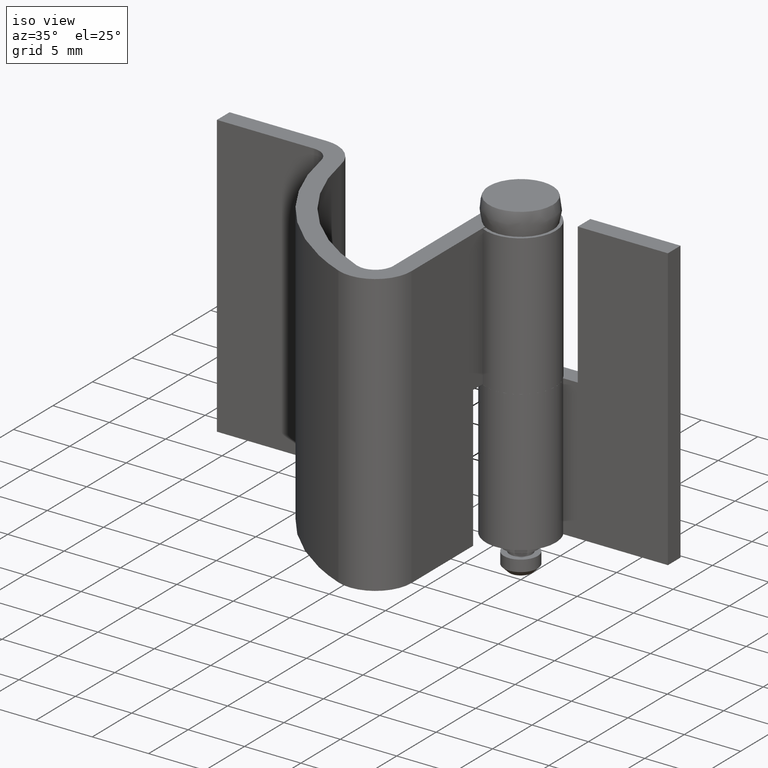
[diagram: clean part render]
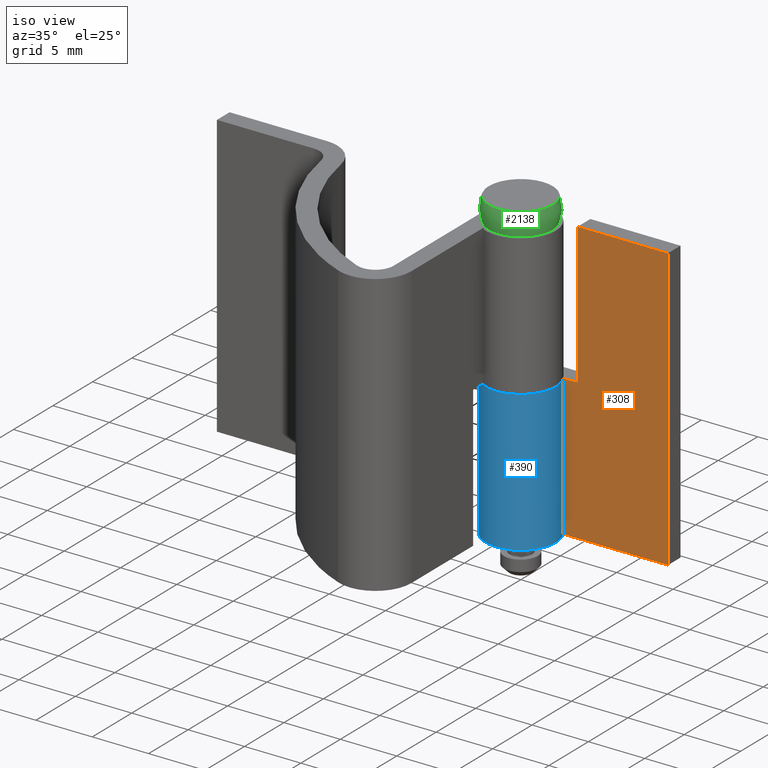
[diagram: same view with three faces highlighted in distinct colors, each labeled with its STEP entity id]
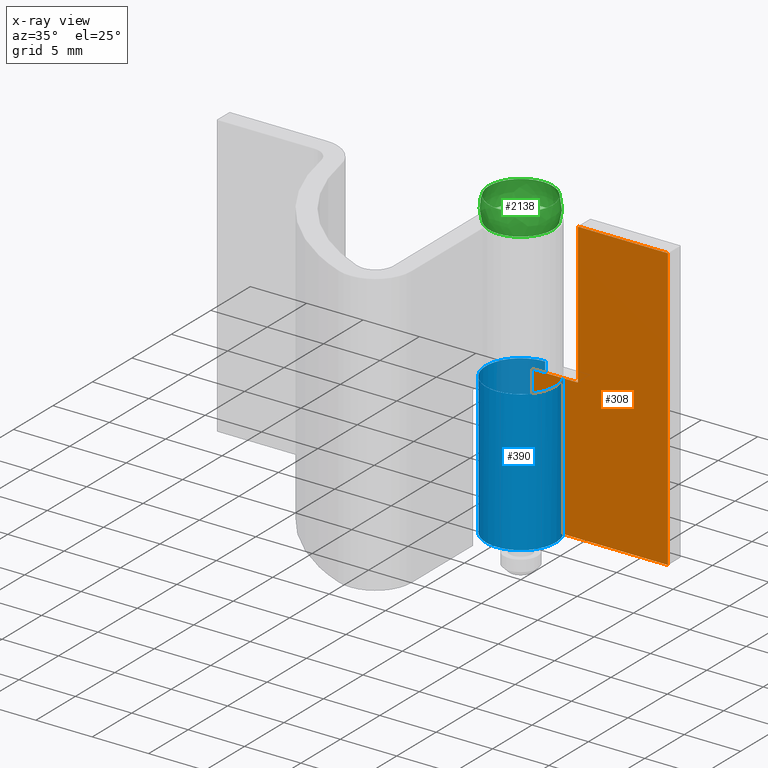
[diagram: x-ray of the same camera — body ghosted, the three highlighted faces saturated]
A machine part, iso view with three faces highlighted in distinct colors.
The next image is the same camera in x-ray (body ghosted, the three faces saturated) — at least one of them is partly hidden behind the body in this view.
Their STEP definitions:

[orange] entity #308 — the highlighted face is a freeform B-spline surface patch.
#79=CARTESIAN_POINT('',(1.240420E-015,1.500000000000000,15.500000000000000));
#80=VERTEX_POINT('',#79);
#100=CARTESIAN_POINT('',(4.0,1.500000000000085,15.500000000000000));
#101=VERTEX_POINT('',#100);
#102=CARTESIAN_POINT('',(1.240420E-015,1.500000000000000,15.500000000000000));
#103=CARTESIAN_POINT('',(4.0,1.500000000000085,15.500000000000000));
#104=QUASI_UNIFORM_CURVE('',1,(#102,#103),.UNSPECIFIED.,.F.,.U.);
#105=EDGE_CURVE('',#80,#101,#104,.T.);
#142=CARTESIAN_POINT('',(4.0,1.500000000000085,28.000008000000001));
#143=VERTEX_POINT('',#142);
#157=CARTESIAN_POINT('',(4.0,1.500000000000085,15.500000000000000));
#158=CARTESIAN_POINT('',(4.0,1.500000000000085,28.000008000000001));
#159=QUASI_UNIFORM_CURVE('',1,(#157,#158),.UNSPECIFIED.,.F.,.U.);
#160=EDGE_CURVE('',#101,#143,#159,.T.);
#179=CARTESIAN_POINT('',(12.0,1.500000000000000,3.0));
#180=VERTEX_POINT('',#179);
#186=CARTESIAN_POINT('',(1.240422E-015,1.500000000000000,3.0));
#187=VERTEX_POINT('',#186);
#188=CARTESIAN_POINT('',(1.240422E-015,1.500000000000000,3.0));
#189=CARTESIAN_POINT('',(12.0,1.500000000000000,3.0));
#190=QUASI_UNIFORM_CURVE('',1,(#188,#189),.UNSPECIFIED.,.F.,.U.);
#191=EDGE_CURVE('',#187,#180,#190,.T.);
#256=CARTESIAN_POINT('',(12.0,1.500000000000000,28.000008000000001));
#257=VERTEX_POINT('',#256);
#263=CARTESIAN_POINT('',(12.0,1.500000000000000,28.000008000000001));
#264=CARTESIAN_POINT('',(12.0,1.500000000000000,3.0));
#265=QUASI_UNIFORM_CURVE('',1,(#263,#264),.UNSPECIFIED.,.F.,.U.);
#266=EDGE_CURVE('',#257,#180,#265,.T.);
#277=CARTESIAN_POINT('',(4.0,1.500000000000085,28.000008000000001));
#278=CARTESIAN_POINT('',(12.0,1.500000000000000,28.000008000000001));
#279=QUASI_UNIFORM_CURVE('',1,(#277,#278),.UNSPECIFIED.,.F.,.U.);
#280=EDGE_CURVE('',#143,#257,#279,.T.);
#291=CARTESIAN_POINT('',(-0.599399976741670,1.500000000000000,29.248758116462952));
#292=CARTESIAN_POINT('',(-0.599399976741670,1.500000000000000,1.751248989467098));
#293=CARTESIAN_POINT('',(12.599400298606760,1.500000000000000,29.248758116462952));
#294=CARTESIAN_POINT('',(12.599400298606760,1.500000000000000,1.751248989467098));
#295=B_SPLINE_SURFACE_WITH_KNOTS('',1,1,((#291,#293),(#292,#294)),.UNSPECIFIED.,.F.,.F.,.U.,(2,2),(2,2),(0.0,27.497509126995851),(0.0,13.198800275348431),.UNSPECIFIED.);
#296=ORIENTED_EDGE('',*,*,#105,.F.);
#297=CARTESIAN_POINT('',(1.240420E-015,1.500000000000000,15.500000000000000));
#298=CARTESIAN_POINT('',(1.240422E-015,1.500000000000000,3.0));
#299=QUASI_UNIFORM_CURVE('',1,(#297,#298),.UNSPECIFIED.,.F.,.U.);
#300=EDGE_CURVE('',#80,#187,#299,.T.);
#301=ORIENTED_EDGE('',*,*,#300,.T.);
#302=ORIENTED_EDGE('',*,*,#191,.T.);
#303=ORIENTED_EDGE('',*,*,#266,.F.);
#304=ORIENTED_EDGE('',*,*,#280,.F.);
#305=ORIENTED_EDGE('',*,*,#160,.F.);
#306=EDGE_LOOP('',(#296,#301,#302,#303,#304,#305));
#307=FACE_OUTER_BOUND('',#306,.T.);
#308=ADVANCED_FACE('',(#307),#295,.T.);

[blue] entity #390 — the highlighted face is a freeform B-spline surface patch.
#49=CARTESIAN_POINT('',(2.739981751764050,1.450000000000000,15.500000000000000));
#50=VERTEX_POINT('',#49);
#51=CARTESIAN_POINT('',(-0.003521362805220,3.099998000000000,15.500000000000000));
#52=VERTEX_POINT('',#51);
#53=CARTESIAN_POINT('',(2.739981751764050,1.450000000000002,15.500000000000000));
#54=CARTESIAN_POINT('',(3.841702627498679,-0.631858686241644,15.500000000000005));
#55=CARTESIAN_POINT('',(2.131234265315453,-2.251186466365081,15.500000000000000));
#56=CARTESIAN_POINT('',(0.420765903132227,-3.870514246488519,15.500000000000005));
#57=CARTESIAN_POINT('',(-1.597709990920185,-2.656562211752968,15.500000000000000));
#58=CARTESIAN_POINT('',(-3.616185884972596,-1.442610177017418,15.500000000000005));
#59=CARTESIAN_POINT('',(-2.987554489866698,0.827356132555585,15.500000000000000));
#60=CARTESIAN_POINT('',(-2.358923094760799,3.097322442128588,15.500000000000005));
#61=CARTESIAN_POINT('',(-0.003521362805220,3.099997999999999,15.500000000000000));
#69=(BOUNDED_CURVE()B_SPLINE_CURVE(2,(#53,#54,#55,#56,#57,#58,#59,#60,#61),.UNSPECIFIED.,.F.,.U.)B_SPLINE_CURVE_WITH_KNOTS((3,2,2,2,3),(0.0,0.250000000000000,0.500000000000000,0.750000000000000,1.0),.UNSPECIFIED.)CURVE()GEOMETRIC_REPRESENTATION_ITEM()RATIONAL_B_SPLINE_CURVE((1.0,0.796236027586614,1.0,0.796236027586614,1.0,0.796236027586614,1.0,0.796236027586614,1.0))REPRESENTATION_ITEM(''));
#70=EDGE_CURVE('',#50,#52,#69,.T.);
#172=CARTESIAN_POINT('',(-0.003521362805220,3.099998000000000,3.0));
#173=VERTEX_POINT('',#172);
#214=CARTESIAN_POINT('',(2.739981751764050,1.450000000000000,3.0));
#215=VERTEX_POINT('',#214);
#221=CARTESIAN_POINT('',(-0.003521362805220,3.099997999999999,3.0));
#222=CARTESIAN_POINT('',(-2.358923094760800,3.097322442128588,3.0));
#223=CARTESIAN_POINT('',(-2.987554489866698,0.827356132555584,3.0));
#224=CARTESIAN_POINT('',(-3.616185884972595,-1.442610177017417,3.0));
#225=CARTESIAN_POINT('',(-1.597709990920186,-2.656562211752968,3.0));
#226=CARTESIAN_POINT('',(0.420765903132224,-3.870514246488519,3.0));
#227=CARTESIAN_POINT('',(2.131234265315451,-2.251186466365083,3.0));
#228=CARTESIAN_POINT('',(3.841702627498679,-0.631858686241647,3.0));
#229=CARTESIAN_POINT('',(2.739981751764052,1.450000000000000,3.0));
#237=(BOUNDED_CURVE()B_SPLINE_CURVE(2,(#221,#222,#223,#224,#225,#226,#227,#228,#229),.UNSPECIFIED.,.F.,.U.)B_SPLINE_CURVE_WITH_KNOTS((3,2,2,2,3),(0.0,0.250000000000000,0.500000000000000,0.750000000000000,1.0),.UNSPECIFIED.)CURVE()GEOMETRIC_REPRESENTATION_ITEM()RATIONAL_B_SPLINE_CURVE((1.0,0.796236027586614,1.0,0.796236027586614,1.0,0.796236027586614,1.0,0.796236027586614,1.0))REPRESENTATION_ITEM(''));
#238=EDGE_CURVE('',#173,#215,#237,.T.);
#347=CARTESIAN_POINT('',(2.739981751764050,1.450000000000000,15.500000000000000));
#348=CARTESIAN_POINT('',(2.739981751764050,1.450000000000000,3.0));
#349=QUASI_UNIFORM_CURVE('',1,(#347,#348),.UNSPECIFIED.,.F.,.U.);
#350=EDGE_CURVE('',#50,#215,#349,.T.);
#358=CARTESIAN_POINT('',(0.131702002345663,3.097201088495568,15.812500000000000));
#359=CARTESIAN_POINT('',(0.131702002345663,3.097201088495568,2.679687500000000));
#360=CARTESIAN_POINT('',(-3.625503359181679,3.256968392974133,15.812500000000007));
#361=CARTESIAN_POINT('',(-3.625503359181679,3.256968392974133,2.679687500000000));
#362=CARTESIAN_POINT('',(-3.065426707827600,-0.461691562557988,15.812500000000000));
#363=CARTESIAN_POINT('',(-3.065426707827600,-0.461691562557988,2.679687500000000));
#364=CARTESIAN_POINT('',(-2.505350056473519,-4.180351518090109,15.812500000000007));
#365=CARTESIAN_POINT('',(-2.505350056473519,-4.180351518090109,2.679687500000000));
#366=CARTESIAN_POINT('',(1.038119978696361,-2.921011282044535,15.812500000000000));
#367=CARTESIAN_POINT('',(1.038119978696361,-2.921011282044535,2.679687500000000));
#368=CARTESIAN_POINT('',(4.581590013866240,-1.661671045998961,15.812500000000007));
#369=CARTESIAN_POINT('',(4.581590013866240,-1.661671045998961,2.679687500000000));
#370=CARTESIAN_POINT('',(2.669261447396855,1.576402018978927,15.812500000000000));
#371=CARTESIAN_POINT('',(2.669261447396855,1.576402018978927,2.679687500000000));
#379=(BOUNDED_SURFACE()B_SPLINE_SURFACE(1,2,((#358,#360,#362,#364,#366,#368,#370),(#359,#361,#363,#365,#367,#369,#371)),.UNSPECIFIED.,.F.,.F.,.U.)B_SPLINE_SURFACE_WITH_KNOTS((2,2),(3,2,2,3),(0.0,13.132812500000000),(0.0,5.848219672763137,11.696439345526271,17.544659018289408),.UNSPECIFIED.)GEOMETRIC_REPRESENTATION_ITEM()RATIONAL_B_SPLINE_SURFACE(((1.0,0.636078220277764,1.0,0.636078220277764,1.0,0.636078220277764,1.0),(1.0,0.636078220277764,1.0,0.636078220277764,1.0,0.636078220277764,1.0)))REPRESENTATION_ITEM('')SURFACE());
#380=CARTESIAN_POINT('',(-0.003521362805220,3.099998000000000,15.500000000000000));
#381=CARTESIAN_POINT('',(-0.003521362805220,3.099998000000000,3.0));
#382=QUASI_UNIFORM_CURVE('',1,(#380,#381),.UNSPECIFIED.,.F.,.U.);
#383=EDGE_CURVE('',#52,#173,#382,.T.);
#384=ORIENTED_EDGE('',*,*,#383,.T.);
#385=ORIENTED_EDGE('',*,*,#238,.T.);
#386=ORIENTED_EDGE('',*,*,#350,.F.);
#387=ORIENTED_EDGE('',*,*,#70,.T.);
#388=EDGE_LOOP('',(#384,#385,#386,#387));
#389=FACE_OUTER_BOUND('',#388,.T.);
#390=ADVANCED_FACE('',(#389),#379,.T.);

[green] entity #2138 — the highlighted face is a freeform B-spline surface patch.
#1953=CARTESIAN_POINT('',(2.828430000000000,0.0,30.000008000000001));
#1954=VERTEX_POINT('',#1953);
#1955=CARTESIAN_POINT('',(-2.828430000000000,0.0,30.000008000000001));
#1956=VERTEX_POINT('',#1955);
#1957=CARTESIAN_POINT('',(2.828430000000000,0.0,30.000008000000001));
#1958=CARTESIAN_POINT('',(2.828429999999999,-2.828429999999999,30.000008000000008));
#1959=CARTESIAN_POINT('',(0.0,-2.828430000000000,30.000008000000001));
#1960=CARTESIAN_POINT('',(-2.828429999999999,-2.828429999999999,30.000008000000008));
#1961=CARTESIAN_POINT('',(-2.828430000000000,0.0,30.000008000000001));
#1969=(BOUNDED_CURVE()B_SPLINE_CURVE(2,(#1957,#1958,#1959,#1960,#1961),.UNSPECIFIED.,.F.,.U.)B_SPLINE_CURVE_WITH_KNOTS((3,2,3),(0.500000000000000,0.750000000000000,1.0),.UNSPECIFIED.)CURVE()GEOMETRIC_REPRESENTATION_ITEM()RATIONAL_B_SPLINE_CURVE((1.0,0.707106781186547,1.0,0.707106781186547,1.0))REPRESENTATION_ITEM(''));
#1970=EDGE_CURVE('',#1954,#1956,#1969,.T.);
#1972=CARTESIAN_POINT('',(-2.828430000000000,0.0,30.000008000000001));
#1973=CARTESIAN_POINT('',(-2.828429999999999,2.828429999999999,30.000008000000008));
#1974=CARTESIAN_POINT('',(0.0,2.828430000000000,30.000008000000001));
#1975=CARTESIAN_POINT('',(2.828429999999999,2.828429999999999,30.000008000000008));
#1976=CARTESIAN_POINT('',(2.828430000000000,0.0,30.000008000000001));
#1984=(BOUNDED_CURVE()B_SPLINE_CURVE(2,(#1972,#1973,#1974,#1975,#1976),.UNSPECIFIED.,.F.,.U.)B_SPLINE_CURVE_WITH_KNOTS((3,2,3),(0.0,0.250000000000000,0.500000000000000),.UNSPECIFIED.)CURVE()GEOMETRIC_REPRESENTATION_ITEM()RATIONAL_B_SPLINE_CURVE((1.0,0.707106781186547,1.0,0.707106781186547,1.0))REPRESENTATION_ITEM(''));
#1985=EDGE_CURVE('',#1956,#1954,#1984,.T.);
#2043=CARTESIAN_POINT('',(-2.828427124746190,0.0,28.000008000000001));
#2044=VERTEX_POINT('',#2043);
#2045=CARTESIAN_POINT('',(2.828427124746190,0.0,28.000008000000001));
#2046=VERTEX_POINT('',#2045);
#2047=CARTESIAN_POINT('',(-2.828427124746190,0.0,28.000008000000001));
#2048=CARTESIAN_POINT('',(-2.828427124746189,2.828427124746189,28.000008000000001));
#2049=CARTESIAN_POINT('',(0.0,2.828427124746190,28.000008000000001));
#2050=CARTESIAN_POINT('',(2.828427124746189,2.828427124746189,28.000008000000001));
#2051=CARTESIAN_POINT('',(2.828427124746190,0.0,28.000008000000001));
#2059=(BOUNDED_CURVE()B_SPLINE_CURVE(2,(#2047,#2048,#2049,#2050,#2051),.UNSPECIFIED.,.F.,.U.)B_SPLINE_CURVE_WITH_KNOTS((3,2,3),(0.0,0.250000000000000,0.500000000000000),.UNSPECIFIED.)CURVE()GEOMETRIC_REPRESENTATION_ITEM()RATIONAL_B_SPLINE_CURVE((1.0,0.707106781186547,1.0,0.707106781186547,1.0))REPRESENTATION_ITEM(''));
#2060=EDGE_CURVE('',#2044,#2046,#2059,.T.);
#2062=CARTESIAN_POINT('',(2.828427124746190,0.0,28.000008000000001));
#2063=CARTESIAN_POINT('',(2.828427124746189,-2.828427124746189,28.000008000000001));
#2064=CARTESIAN_POINT('',(0.0,-2.828427124746190,28.000008000000001));
#2065=CARTESIAN_POINT('',(-2.828427124746189,-2.828427124746189,28.000008000000001));
#2066=CARTESIAN_POINT('',(-2.828427124746190,0.0,28.000008000000001));
#2074=(BOUNDED_CURVE()B_SPLINE_CURVE(2,(#2062,#2063,#2064,#2065,#2066),.UNSPECIFIED.,.F.,.U.)B_SPLINE_CURVE_WITH_KNOTS((3,2,3),(0.500000000000000,0.750000000000000,1.0),.UNSPECIFIED.)CURVE()GEOMETRIC_REPRESENTATION_ITEM()RATIONAL_B_SPLINE_CURVE((1.0,0.707106781186547,1.0,0.707106781186547,1.0))REPRESENTATION_ITEM(''));
#2075=EDGE_CURVE('',#2046,#2044,#2074,.T.);
#2086=CARTESIAN_POINT('',(-1.659948486635681,-1.659948486635678,27.132083471698113));
#2087=CARTESIAN_POINT('',(-1.561726682692741,-2.082302243590318,27.420126343195271));
#2088=CARTESIAN_POINT('',(-0.698232299934057,-2.792929199736222,27.904769904761899));
#2089=CARTESIAN_POINT('',(0.698232299934053,-2.792929199736222,27.904769904761892));
#2090=CARTESIAN_POINT('',(1.561726682692736,-2.082302243590318,27.420126343195250));
#2091=CARTESIAN_POINT('',(1.659948486635675,-1.659948486635678,27.132083471698113));
#2092=CARTESIAN_POINT('',(-2.082302243590320,-1.561726682692738,27.420126343195271));
#2093=CARTESIAN_POINT('',(-2.094696899802168,-2.094696899802166,27.904769904761903));
#2094=CARTESIAN_POINT('',(-1.059967105923989,-3.179901317771965,28.891574265060228));
#2095=CARTESIAN_POINT('',(1.059967105923988,-3.179901317771965,28.891574265060225));
#2096=CARTESIAN_POINT('',(2.094696899802165,-2.094696899802166,27.904769904761892));
#2097=CARTESIAN_POINT('',(2.082302243590315,-1.561726682692738,27.420126343195250));
#2098=CARTESIAN_POINT('',(-2.792929199736223,-0.698232299934055,27.904769904761903));
#2099=CARTESIAN_POINT('',(-3.179901317771965,-1.059967105923988,28.891574265060228));
#2100=CARTESIAN_POINT('',(-2.199431744792277,-2.199431744792283,32.000008000000001));
#2101=CARTESIAN_POINT('',(2.199431744792286,-2.199431744792283,32.000007999999987));
#2102=CARTESIAN_POINT('',(3.179901317771965,-1.059967105923988,28.891574265060221));
#2103=CARTESIAN_POINT('',(2.792929199736220,-0.698232299934055,27.904769904761892));
#2104=CARTESIAN_POINT('',(-2.792929199736223,0.698232299934056,27.904769904761903));
#2105=CARTESIAN_POINT('',(-3.179901317771965,1.059967105923989,28.891574265060228));
#2106=CARTESIAN_POINT('',(-2.199431744792277,2.199431744792282,32.000008000000001));
#2107=CARTESIAN_POINT('',(2.199431744792286,2.199431744792282,32.000007999999987));
#2108=CARTESIAN_POINT('',(3.179901317771965,1.059967105923989,28.891574265060221));
#2109=CARTESIAN_POINT('',(2.792929199736220,0.698232299934056,27.904769904761892));
#2110=CARTESIAN_POINT('',(-2.082302243590320,1.561726682692739,27.420126343195271));
#2111=CARTESIAN_POINT('',(-2.094696899802168,2.094696899802166,27.904769904761903));
#2112=CARTESIAN_POINT('',(-1.059967105923989,3.179901317771965,28.891574265060228));
#2113=CARTESIAN_POINT('',(1.059967105923988,3.179901317771965,28.891574265060225));
#2114=CARTESIAN_POINT('',(2.094696899802165,2.094696899802166,27.904769904761892));
#2115=CARTESIAN_POINT('',(2.082302243590315,1.561726682692739,27.420126343195250));
#2116=CARTESIAN_POINT('',(-1.659948486635681,1.659948486635678,27.132083471698113));
#2117=CARTESIAN_POINT('',(-1.561726682692741,2.082302243590318,27.420126343195271));
#2118=CARTESIAN_POINT('',(-0.698232299934057,2.792929199736222,27.904769904761899));
#2119=CARTESIAN_POINT('',(0.698232299934053,2.792929199736222,27.904769904761899));
#2120=CARTESIAN_POINT('',(1.561726682692736,2.082302243590318,27.420126343195250));
#2121=CARTESIAN_POINT('',(1.659948486635675,1.659948486635678,27.132083471698113));
#2129=(BOUNDED_SURFACE()B_SPLINE_SURFACE(2,2,((#2086,#2092,#2098,#2104,#2110,#2116),(#2087,#2093,#2099,#2105,#2111,#2117),(#2088,#2094,#2100,#2106,#2112,#2118),(#2089,#2095,#2101,#2107,#2113,#2119),(#2090,#2096,#2102,#2108,#2114,#2120),(#2091,#2097,#2103,#2109,#2115,#2121)),.UNSPECIFIED.,.F.,.F.,.U.)B_SPLINE_SURFACE_WITH_KNOTS((3,1,1,1,3),(3,1,1,1,3),(0.0,3.467084523810484,6.934169047620968,10.401253571431450,13.868338095241940),(0.0,3.467084523810481,6.934169047620962,10.401253571431440,13.868338095241921),.UNSPECIFIED.)GEOMETRIC_REPRESENTATION_ITEM()RATIONAL_B_SPLINE_SURFACE(((5.300000000000022,4.225000000000017,3.150000000000011,3.150000000000011,4.225000000000017,5.300000000000022),(4.225000000000017,3.150000000000011,2.075000000000006,2.075000000000006,3.150000000000011,4.225000000000017),(3.150000000000011,2.075000000000006,1.0,1.0,2.075000000000006,3.150000000000011),(3.150000000000011,2.075000000000006,1.0,1.0,2.075000000000006,3.150000000000011),(4.225000000000017,3.150000000000011,2.075000000000006,2.075000000000006,3.150000000000011,4.225000000000017),(5.300000000000022,4.225000000000017,3.150000000000011,3.150000000000011,4.225000000000017,5.300000000000022)))REPRESENTATION_ITEM('')SURFACE());
#2130=ORIENTED_EDGE('',*,*,#1985,.T.);
#2131=ORIENTED_EDGE('',*,*,#1970,.T.);
#2132=EDGE_LOOP('',(#2130,#2131));
#2133=FACE_OUTER_BOUND('',#2132,.T.);
#2134=ORIENTED_EDGE('',*,*,#2075,.F.);
#2135=ORIENTED_EDGE('',*,*,#2060,.F.);
#2136=EDGE_LOOP('',(#2134,#2135));
#2137=FACE_BOUND('',#2136,.T.);
#2138=ADVANCED_FACE('',(#2133,#2137),#2129,.T.);